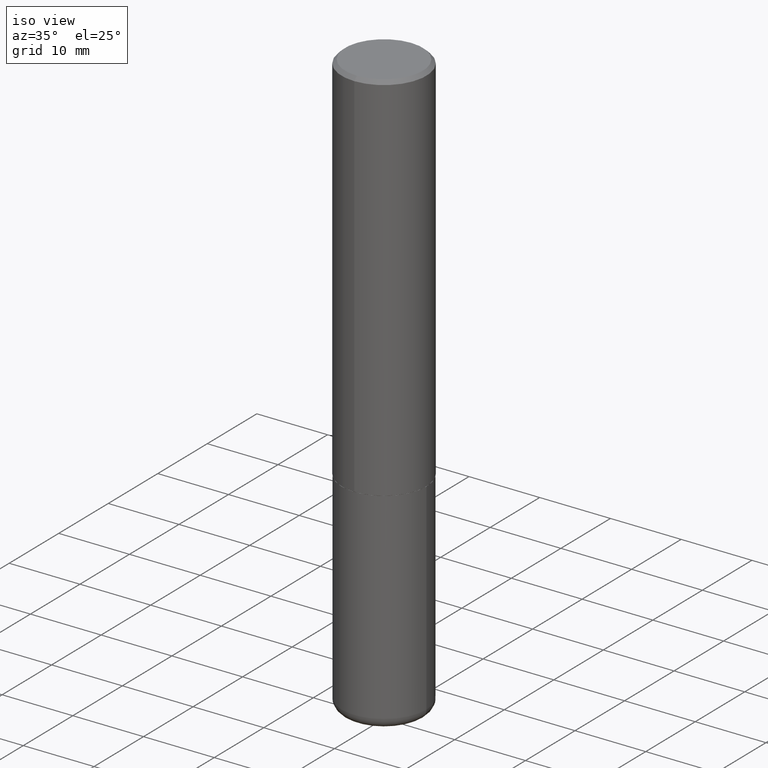
[diagram: clean part render]
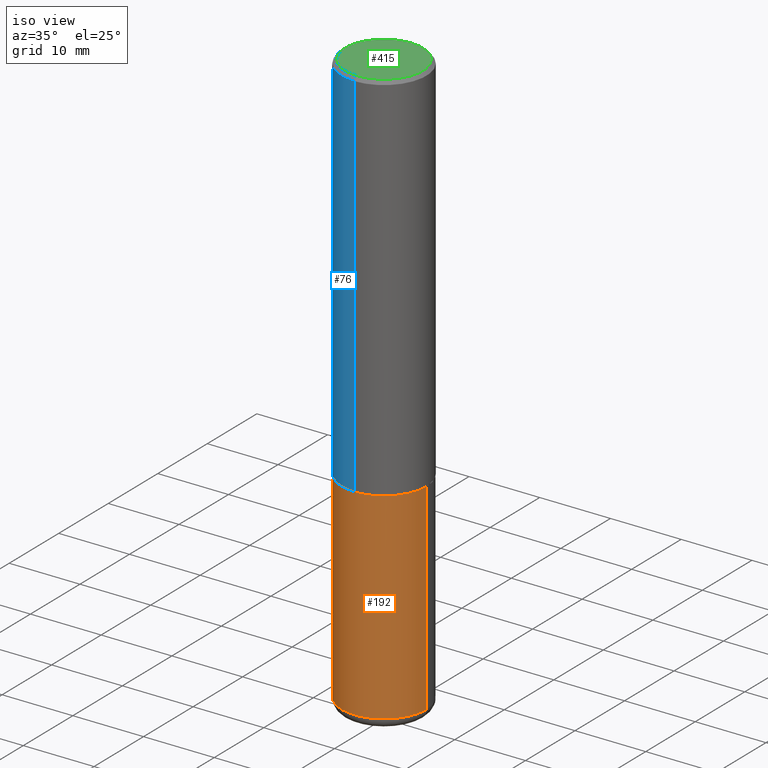
[diagram: same view with three faces highlighted in distinct colors, each labeled with its STEP entity id]
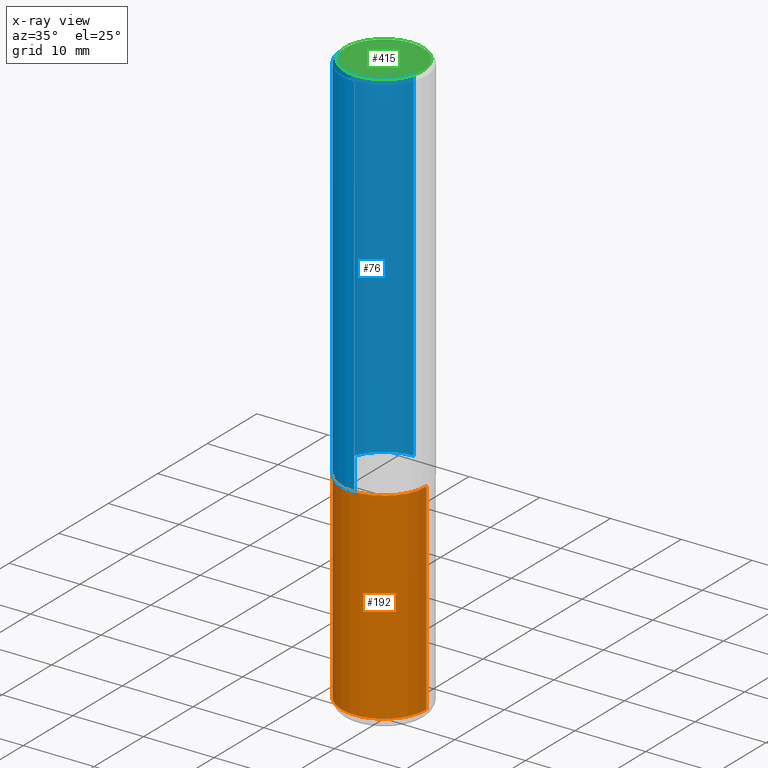
[diagram: x-ray of the same camera — body ghosted, the three highlighted faces saturated]
A machine part, iso view with three faces highlighted in distinct colors.
The next image is the same camera in x-ray (body ghosted, the three faces saturated) — at least one of them is partly hidden behind the body in this view.
Their STEP definitions:

[orange] entity #192 — the highlighted cylindrical surface (partial cylindrical patch) has radius 5.9995 mm, axis along (-0, 0, 1).
#12 = CYLINDRICAL_SURFACE ( 'NONE', #228, 0.2361999999999999933 ) ;
#23 = EDGE_CURVE ( 'NONE', #235, #24, #98, .T. ) ;
#24 = VERTEX_POINT ( 'NONE', #151 ) ;
#41 = DIRECTION ( 'NONE',  ( -2.445468806185136597E-29, 3.491481338843145583E-15, 1.000000000000000000 ) ) ;
#43 = EDGE_CURVE ( 'NONE', #235, #402, #248, .T. ) ;
#53 = EDGE_LOOP ( 'NONE', ( #59, #136, #138, #334 ) ) ;
#59 = ORIENTED_EDGE ( 'NONE', *, *, #43, .F. ) ;
#60 = DIRECTION ( 'NONE',  ( 1.000000000000000000, -6.982962677686265133E-15, 0.000000000000000000 ) ) ;
#74 = AXIS2_PLACEMENT_3D ( 'NONE', #90, #278, #60 ) ;
#90 = CARTESIAN_POINT ( 'NONE',  ( 5.102715210985906276E-29, -7.285324961630107416E-15, -2.086600000000000232 ) ) ;
#97 = DIRECTION ( 'NONE',  ( 1.000000000000000000, -6.982962677686266711E-15, 4.876176775795936353E-29 ) ) ;
#98 = CIRCLE ( 'NONE', #175, 0.2362000000000000210 ) ;
#108 = VECTOR ( 'NONE', #341, 39.37007874015748143 ) ;
#119 = CARTESIAN_POINT ( 'NONE',  ( 0.2361999999999999933, -1.649375784469496131E-15, 1.151752954443000088E-29 ) ) ;
#121 = LINE ( 'NONE', #119, #108 ) ;
#136 = ORIENTED_EDGE ( 'NONE', *, *, #23, .T. ) ;
#138 = ORIENTED_EDGE ( 'NONE', *, *, #307, .T. ) ;
#151 = CARTESIAN_POINT ( 'NONE',  ( 0.2361999999999999933, -1.285214280828161414E-14, -3.208600000000000119 ) ) ;
#153 = CARTESIAN_POINT ( 'NONE',  ( 0.000000000000000000, 0.000000000000000000, 0.000000000000000000 ) ) ;
#175 = AXIS2_PLACEMENT_3D ( 'NONE', #216, #41, #357 ) ;
#192 = ADVANCED_FACE ( 'NONE', ( #291 ), #12, .T. ) ;
#210 = DIRECTION ( 'NONE',  ( -2.445468806185136877E-29, 3.491481338843145188E-15, 1.000000000000000000 ) ) ;
#216 = CARTESIAN_POINT ( 'NONE',  ( 7.846531211525630380E-29, -1.120276702381211762E-14, -3.208600000000000119 ) ) ;
#221 = CIRCLE ( 'NONE', #74, 0.2361999999999999933 ) ;
#228 = AXIS2_PLACEMENT_3D ( 'NONE', #153, #250, #97 ) ;
#235 = VERTEX_POINT ( 'NONE', #417 ) ;
#248 = LINE ( 'NONE', #254, #389 ) ;
#250 = DIRECTION ( 'NONE',  ( -2.445468806185136597E-29, 3.491481338843145583E-15, 1.000000000000000000 ) ) ;
#254 = CARTESIAN_POINT ( 'NONE',  ( -0.2361999999999999933, 1.678301941865356591E-15, -1.161852468318208757E-29 ) ) ;
#278 = DIRECTION ( 'NONE',  ( -2.445468806185136597E-29, 3.491481338843145583E-15, 1.000000000000000000 ) ) ;
#291 = FACE_OUTER_BOUND ( 'NONE', #53, .T. ) ;
#296 = EDGE_CURVE ( 'NONE', #402, #339, #221, .T. ) ;
#306 = CARTESIAN_POINT ( 'NONE',  ( 0.2361999999999999933, -8.934700746099602364E-15, -2.086600000000000232 ) ) ;
#307 = EDGE_CURVE ( 'NONE', #24, #339, #121, .T. ) ;
#334 = ORIENTED_EDGE ( 'NONE', *, *, #296, .F. ) ;
#339 = VERTEX_POINT ( 'NONE', #306 ) ;
#341 = DIRECTION ( 'NONE',  ( -2.445468806185136877E-29, 3.491481338843145188E-15, 1.000000000000000000 ) ) ;
#357 = DIRECTION ( 'NONE',  ( 1.000000000000000000, -6.982962677686264344E-15, 0.000000000000000000 ) ) ;
#389 = VECTOR ( 'NONE', #210, 39.37007874015748143 ) ;
#395 = CARTESIAN_POINT ( 'NONE',  ( -0.2361999999999999933, -7.565744050855755335E-15, -2.086600000000000232 ) ) ;
#402 = VERTEX_POINT ( 'NONE', #395 ) ;
#417 = CARTESIAN_POINT ( 'NONE',  ( -0.2361999999999999933, -9.524465081946761225E-15, -3.208600000000000119 ) ) ;

[blue] entity #76 — the highlighted cylindrical surface (partial cylindrical patch) has radius 5.9995 mm, axis along (-0, 0, 1).
#28 = AXIS2_PLACEMENT_3D ( 'NONE', #392, #329, #283 ) ;
#37 = EDGE_CURVE ( 'NONE', #257, #170, #317, .T. ) ;
#76 = ADVANCED_FACE ( 'NONE', ( #391 ), #206, .T. ) ;
#78 = ORIENTED_EDGE ( 'NONE', *, *, #37, .T. ) ;
#85 = DIRECTION ( 'NONE',  ( -6.982962677686265922E-15, -1.000000000000000000, 3.469747663417773452E-15 ) ) ;
#92 = DIRECTION ( 'NONE',  ( -2.445164865864999768E-29, 3.491916598680790247E-15, 1.000000000000000000 ) ) ;
#93 = CARTESIAN_POINT ( 'NONE',  ( 1.649375784469496525E-15, 0.2361999999999999378, -0.02000000000000087472 ) ) ;
#120 = CIRCLE ( 'NONE', #28, 0.2361999999999999933 ) ;
#146 = CARTESIAN_POINT ( 'NONE',  ( 0.000000000000000000, 0.000000000000000000, 0.000000000000000000 ) ) ;
#149 = DIRECTION ( 'NONE',  ( -2.445164865864999768E-29, 3.491916598680790247E-15, 1.000000000000000000 ) ) ;
#158 = VECTOR ( 'NONE', #92, 39.37007874015748143 ) ;
#161 = CARTESIAN_POINT ( 'NONE',  ( -1.620449627073635079E-15, -0.2362000000000000766, -0.01999999999999922673 ) ) ;
#170 = VERTEX_POINT ( 'NONE', #161 ) ;
#186 = CARTESIAN_POINT ( 'NONE',  ( -1.649375784469496920E-15, -0.2362000000000001321, 8.247907006084031649E-16 ) ) ;
#202 = EDGE_LOOP ( 'NONE', ( #376, #400, #78, #270 ) ) ;
#206 = CYLINDRICAL_SURFACE ( 'NONE', #208, 0.2362000000000001321 ) ;
#207 = CARTESIAN_POINT ( 'NONE',  ( 1.678301941865357380E-15, 0.2362000000000001321, -8.247907006084031649E-16 ) ) ;
#208 = AXIS2_PLACEMENT_3D ( 'NONE', #146, #243, #381 ) ;
#233 = EDGE_CURVE ( 'NONE', #372, #257, #384, .T. ) ;
#242 = LINE ( 'NONE', #207, #245 ) ;
#243 = DIRECTION ( 'NONE',  ( -2.445164865864999768E-29, 3.491916598680790247E-15, 1.000000000000000000 ) ) ;
#245 = VECTOR ( 'NONE', #313, 39.37007874015748143 ) ;
#257 = VERTEX_POINT ( 'NONE', #383 ) ;
#270 = ORIENTED_EDGE ( 'NONE', *, *, #398, .F. ) ;
#283 = DIRECTION ( 'NONE',  ( -6.982962677686265922E-15, -1.000000000000000000, 3.487819265831411744E-15 ) ) ;
#313 = DIRECTION ( 'NONE',  ( -2.445164865864999768E-29, 3.491916598680790247E-15, 1.000000000000000000 ) ) ;
#317 = LINE ( 'NONE', #186, #158 ) ;
#329 = DIRECTION ( 'NONE',  ( -2.445164865864999768E-29, 3.491916598680790247E-15, 1.000000000000000000 ) ) ;
#337 = VERTEX_POINT ( 'NONE', #93 ) ;
#338 = CARTESIAN_POINT ( 'NONE',  ( 1.678301941865383610E-15, 0.2361999999999929711, -2.085600000000000787 ) ) ;
#346 = CARTESIAN_POINT ( 'NONE',  ( 5.099635844248043868E-29, -7.282741258208656487E-15, -2.085599999999999898 ) ) ;
#366 = EDGE_CURVE ( 'NONE', #372, #337, #242, .T. ) ;
#372 = VERTEX_POINT ( 'NONE', #338 ) ;
#376 = ORIENTED_EDGE ( 'NONE', *, *, #366, .F. ) ;
#381 = DIRECTION ( 'NONE',  ( -6.982962677686265922E-15, -1.000000000000000000, 3.491916598680790641E-15 ) ) ;
#383 = CARTESIAN_POINT ( 'NONE',  ( -1.649375784469446630E-15, -0.2362000000000075151, -2.085599999999999010 ) ) ;
#384 = CIRCLE ( 'NONE', #410, 0.2362000000000002431 ) ;
#391 = FACE_OUTER_BOUND ( 'NONE', #202, .T. ) ;
#392 = CARTESIAN_POINT ( 'NONE',  ( 4.890329731730012603E-31, -6.983833197361597897E-17, -0.02000000000000005246 ) ) ;
#398 = EDGE_CURVE ( 'NONE', #337, #170, #120, .T. ) ;
#400 = ORIENTED_EDGE ( 'NONE', *, *, #233, .T. ) ;
#410 = AXIS2_PLACEMENT_3D ( 'NONE', #346, #149, #85 ) ;

[green] entity #415 — the highlighted planar face has unit normal (0, -0, -1).
#6 = DIRECTION ( 'NONE',  ( -6.982962677686265922E-15, -1.000000000000000000, 3.491916598680790247E-15 ) ) ;
#13 = EDGE_CURVE ( 'NONE', #330, #167, #407, .T. ) ;
#25 = ORIENTED_EDGE ( 'NONE', *, *, #197, .T. ) ;
#32 = CARTESIAN_POINT ( 'NONE',  ( -1.066731455221863583E-46, 1.523389006125936301E-32, 4.362615666999196179E-18 ) ) ;
#46 = CARTESIAN_POINT ( 'NONE',  ( -1.551844647095919747E-15, -0.2161999999999999755, 7.593149843017860131E-16 ) ) ;
#61 = AXIS2_PLACEMENT_3D ( 'NONE', #396, #185, #289 ) ;
#126 = PLANE ( 'NONE',  #61 ) ;
#159 = FACE_OUTER_BOUND ( 'NONE', #397, .T. ) ;
#167 = VERTEX_POINT ( 'NONE', #46 ) ;
#171 = ORIENTED_EDGE ( 'NONE', *, *, #13, .T. ) ;
#179 = DIRECTION ( 'NONE',  ( -2.445164865864999768E-29, 3.491916598680790247E-15, 1.000000000000000000 ) ) ;
#185 = DIRECTION ( 'NONE',  ( 2.445164865864999488E-29, -3.491916598680790247E-15, -1.000000000000000000 ) ) ;
#197 = EDGE_CURVE ( 'NONE', #167, #330, #328, .T. ) ;
#213 = CARTESIAN_POINT ( 'NONE',  ( -1.066731455221863583E-46, 1.523389006125936301E-32, 4.362615666999196179E-18 ) ) ;
#246 = DIRECTION ( 'NONE',  ( -6.982962677686265922E-15, -1.000000000000000000, 3.491916598680790247E-15 ) ) ;
#264 = AXIS2_PLACEMENT_3D ( 'NONE', #213, #285, #6 ) ;
#271 = CARTESIAN_POINT ( 'NONE',  ( 1.579546157692633424E-15, 0.2161999999999999755, -7.505897529677874959E-16 ) ) ;
#285 = DIRECTION ( 'NONE',  ( -2.445164865864999768E-29, 3.491916598680790247E-15, 1.000000000000000000 ) ) ;
#289 = DIRECTION ( 'NONE',  ( 6.982962677686265922E-15, 1.000000000000000000, -3.491916598680790247E-15 ) ) ;
#295 = AXIS2_PLACEMENT_3D ( 'NONE', #32, #179, #246 ) ;
#328 = CIRCLE ( 'NONE', #295, 0.2161999999999999755 ) ;
#330 = VERTEX_POINT ( 'NONE', #271 ) ;
#396 = CARTESIAN_POINT ( 'NONE',  ( 1.509716530915770520E-15, 0.2161999999999999755, -7.527710608012871499E-16 ) ) ;
#397 = EDGE_LOOP ( 'NONE', ( #171, #25 ) ) ;
#407 = CIRCLE ( 'NONE', #264, 0.2161999999999999755 ) ;
#415 = ADVANCED_FACE ( 'NONE', ( #159 ), #126, .F. ) ;